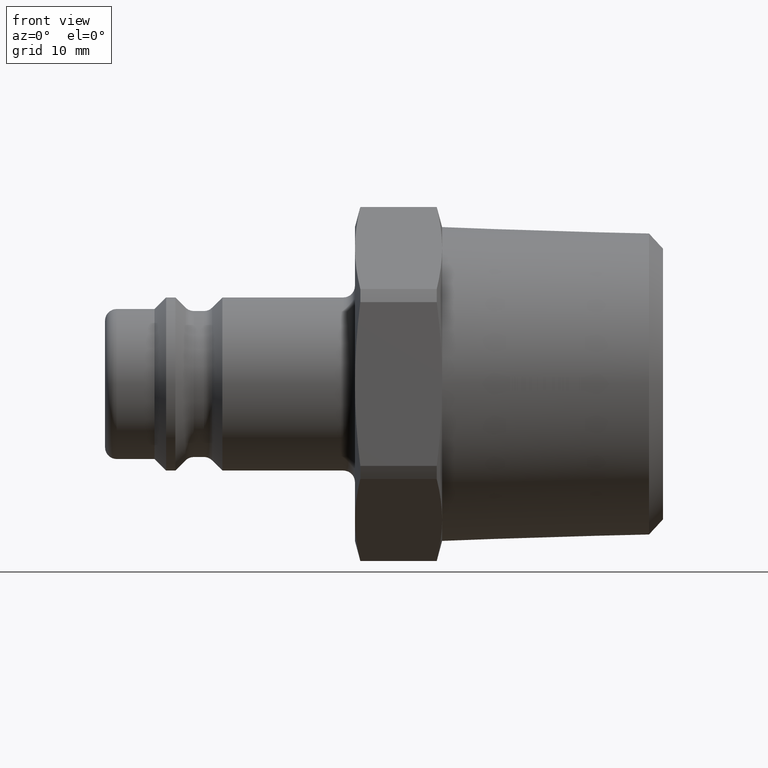
[diagram: clean part render]
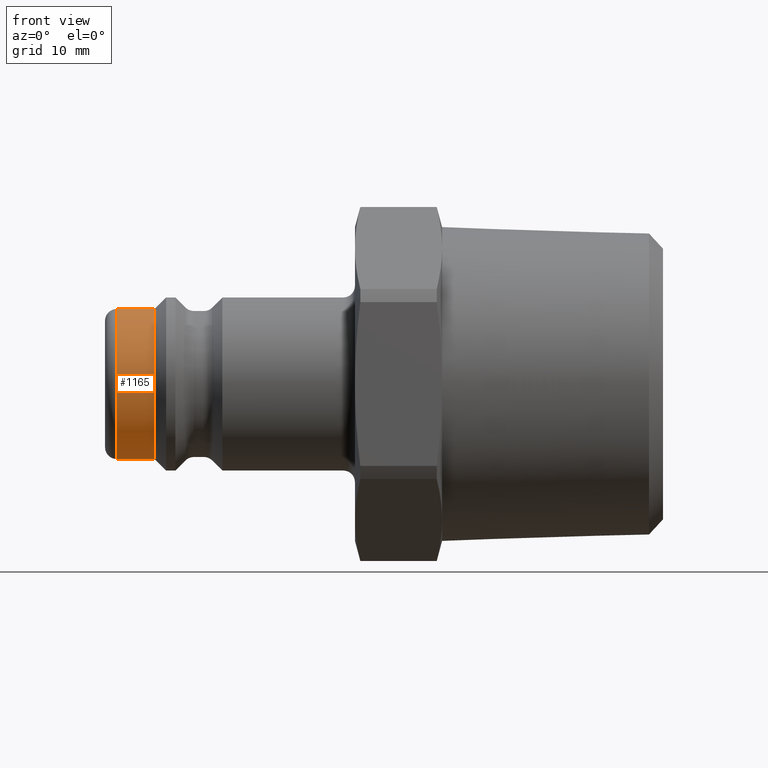
[diagram: same view with one face highlighted and labeled with its STEP entity id]
A machine part, front view. The second image highlights one B-rep face of the part: STEP entity #1165.
In plain terms, the highlighted cylindrical surface (bore or boss wall) has radius 6.5 mm, axis along (1, 0, 0).
Its self-contained STEP definition (entity closure, byte-faithful):
#1134=CARTESIAN_POINT('',(1.0,6.500000000000000,-1.592041E-015));
#1135=VERTEX_POINT('',#1134);
#1136=CARTESIAN_POINT('',(1.0,0.0,0.0));
#1137=DIRECTION('',(-1.0,0.0,0.0));
#1138=DIRECTION('',(0.0,-1.0,0.0));
#1139=AXIS2_PLACEMENT_3D('',#1136,#1137,#1138);
#1140=CIRCLE('',#1139,6.500000000000000);
#1141=EDGE_CURVE('',#1135,#1135,#1140,.T.);
#1146=CARTESIAN_POINT('',(2.125000000000000,0.0,0.0));
#1147=DIRECTION('',(1.0,0.0,0.0));
#1148=DIRECTION('',(0.0,1.0,0.0));
#1149=AXIS2_PLACEMENT_3D('',#1146,#1147,#1148);
#1150=CYLINDRICAL_SURFACE('',#1149,6.500000000000000);
#1151=CARTESIAN_POINT('',(4.250000000000000,6.500000000000000,0.0));
#1152=VERTEX_POINT('',#1151);
#1153=CARTESIAN_POINT('',(4.250000000000000,0.0,0.0));
#1154=DIRECTION('',(1.0,0.0,0.0));
#1155=DIRECTION('',(0.0,1.0,0.0));
#1156=AXIS2_PLACEMENT_3D('',#1153,#1154,#1155);
#1157=CIRCLE('',#1156,6.500000000000000);
#1158=EDGE_CURVE('',#1152,#1152,#1157,.T.);
#1159=ORIENTED_EDGE('',*,*,#1158,.F.);
#1160=EDGE_LOOP('',(#1159));
#1161=FACE_OUTER_BOUND('',#1160,.T.);
#1162=ORIENTED_EDGE('',*,*,#1141,.F.);
#1163=EDGE_LOOP('',(#1162));
#1164=FACE_BOUND('',#1163,.T.);
#1165=ADVANCED_FACE('',(#1161,#1164),#1150,.T.);